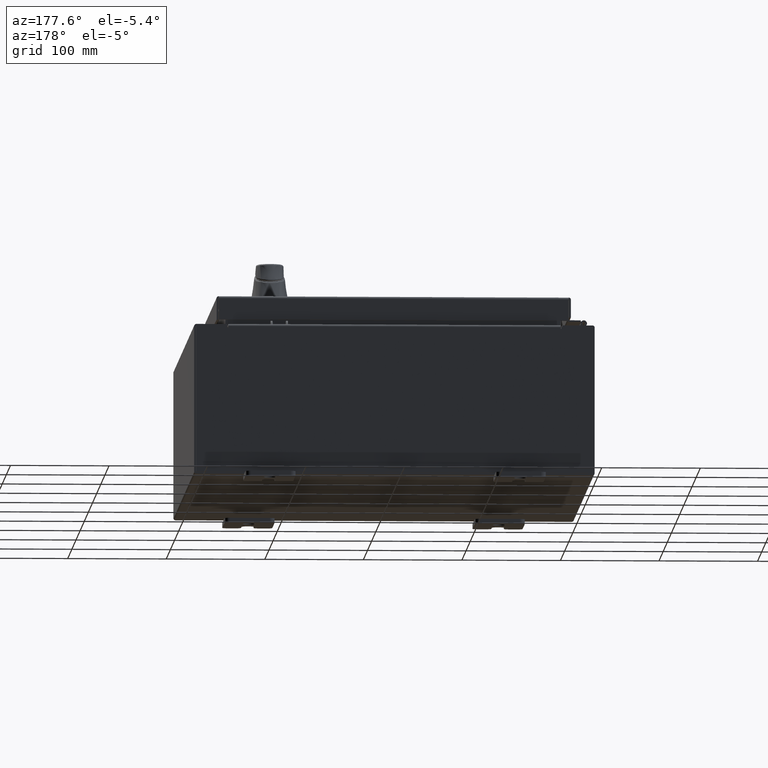
[diagram: clean part render]
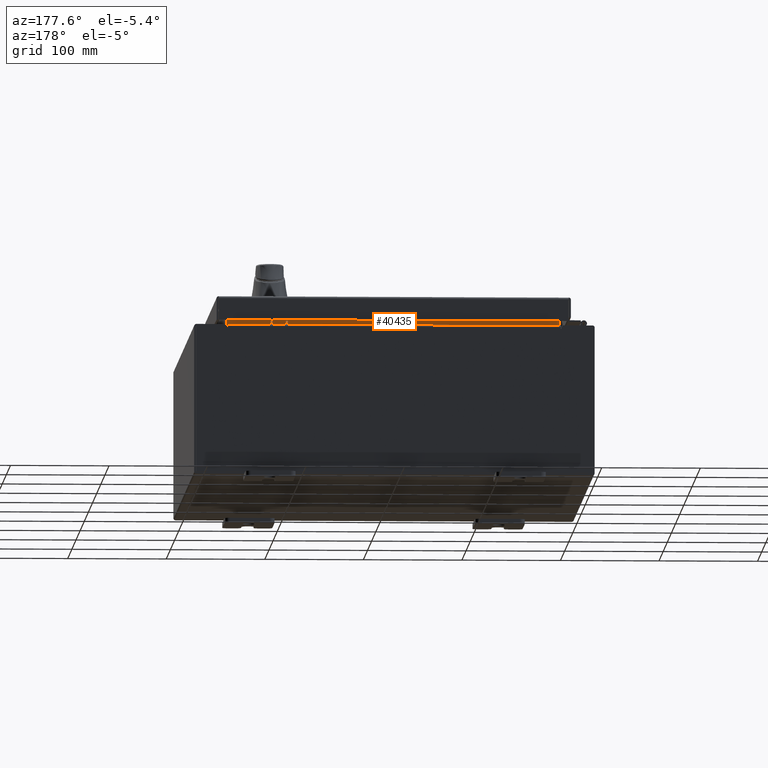
[diagram: same view with one face highlighted and labeled with its STEP entity id]
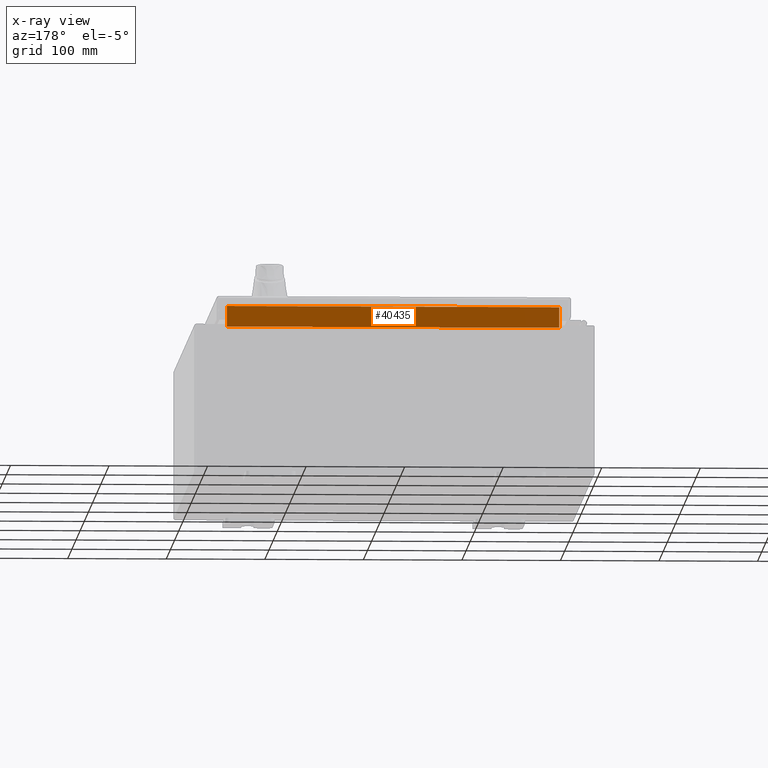
[diagram: x-ray of the same camera — body ghosted, the highlighted face saturated]
A machine part, auxiliary view. The second image highlights one B-rep face of the part: STEP entity #40435.
The next image is the same camera in x-ray: the body ghosted, the highlighted face saturated — about 0% of this face is hidden behind the body in this view.
In plain terms, the highlighted planar face has unit normal (0, 1, 0).
Its self-contained STEP definition (entity closure, byte-faithful):
#295 = VERTEX_POINT ( 'NONE', #93582 ) ;
#513 = VERTEX_POINT ( 'NONE', #25382 ) ;
#6368 = DIRECTION ( 'NONE',  ( -1.000000000000000000, -0.0000000000000000000, -0.0000000000000000000 ) ) ;
#8112 = DIRECTION ( 'NONE',  ( 1.000000000000000000, 0.0000000000000000000, -4.115964553824298400E-017 ) ) ;
#9798 = EDGE_CURVE ( 'NONE', #513, #96418, #17948, .T. ) ;
#10283 = EDGE_CURVE ( 'NONE', #295, #109312, #39199, .T. ) ;
#10553 = PLANE ( 'NONE',  #56981 ) ;
#17948 = LINE ( 'NONE', #41264, #108794 ) ;
#25382 = CARTESIAN_POINT ( 'NONE',  ( 6.637200000000000000, -1.300299999999999800, 3.837600000000005000 ) ) ;
#27680 = CARTESIAN_POINT ( 'NONE',  ( 0.0000000000000000000, -1.300299999999999800, 0.0000000000000000000 ) ) ;
#27702 = ORIENTED_EDGE ( 'NONE', *, *, #83149, .F. ) ;
#28237 = FACE_OUTER_BOUND ( 'NONE', #85018, .T. ) ;
#28390 = ORIENTED_EDGE ( 'NONE', *, *, #10283, .F. ) ;
#36261 = DIRECTION ( 'NONE',  ( 0.0000000000000000000, -0.0000000000000000000, 1.000000000000000000 ) ) ;
#38968 = LINE ( 'NONE', #97535, #59022 ) ;
#39199 = LINE ( 'NONE', #53155, #56569 ) ;
#40435 = ADVANCED_FACE ( 'NONE', ( #28237 ), #10553, .T. ) ;
#41264 = CARTESIAN_POINT ( 'NONE',  ( 6.637200000000000000, -1.300300000000000000, 3.837600000000005000 ) ) ;
#46791 = CARTESIAN_POINT ( 'NONE',  ( 6.637200000000000000, -1.300299999999999800, 3.925300000000005300 ) ) ;
#53155 = CARTESIAN_POINT ( 'NONE',  ( -6.637200000000000000, -1.300299999999999800, 3.013000000000005200 ) ) ;
#53599 = ORIENTED_EDGE ( 'NONE', *, *, #9798, .F. ) ;
#54854 = EDGE_CURVE ( 'NONE', #109312, #513, #81125, .T. ) ;
#56569 = VECTOR ( 'NONE', #8112, 39.37007874015748100 ) ;
#56981 = AXIS2_PLACEMENT_3D ( 'NONE', #27680, #87391, #36261 ) ;
#59022 = VECTOR ( 'NONE', #106202, 39.37007874015748100 ) ;
#64006 = DIRECTION ( 'NONE',  ( -0.0000000000000000000, -0.0000000000000000000, 1.000000000000000000 ) ) ;
#70996 = CARTESIAN_POINT ( 'NONE',  ( -6.637200000000000000, -1.300300000000000000, 3.837600000000005000 ) ) ;
#75810 = VECTOR ( 'NONE', #64006, 39.37007874015748100 ) ;
#80413 = ORIENTED_EDGE ( 'NONE', *, *, #54854, .F. ) ;
#81125 = LINE ( 'NONE', #46791, #75810 ) ;
#83149 = EDGE_CURVE ( 'NONE', #96418, #295, #38968, .T. ) ;
#85018 = EDGE_LOOP ( 'NONE', ( #27702, #53599, #80413, #28390 ) ) ;
#87391 = DIRECTION ( 'NONE',  ( 0.0000000000000000000, 1.000000000000000000, 0.0000000000000000000 ) ) ;
#93582 = CARTESIAN_POINT ( 'NONE',  ( -6.637199999999999100, -1.300299999999999800, 3.013000000000005200 ) ) ;
#96418 = VERTEX_POINT ( 'NONE', #70996 ) ;
#97535 = CARTESIAN_POINT ( 'NONE',  ( -6.637200000000000000, -1.300299999999999800, 3.000000000000005300 ) ) ;
#99482 = CARTESIAN_POINT ( 'NONE',  ( 6.637200000000000900, -1.300299999999999800, 3.013000000000005200 ) ) ;
#106202 = DIRECTION ( 'NONE',  ( -0.0000000000000000000, -0.0000000000000000000, -1.000000000000000000 ) ) ;
#108794 = VECTOR ( 'NONE', #6368, 39.37007874015748100 ) ;
#109312 = VERTEX_POINT ( 'NONE', #99482 ) ;